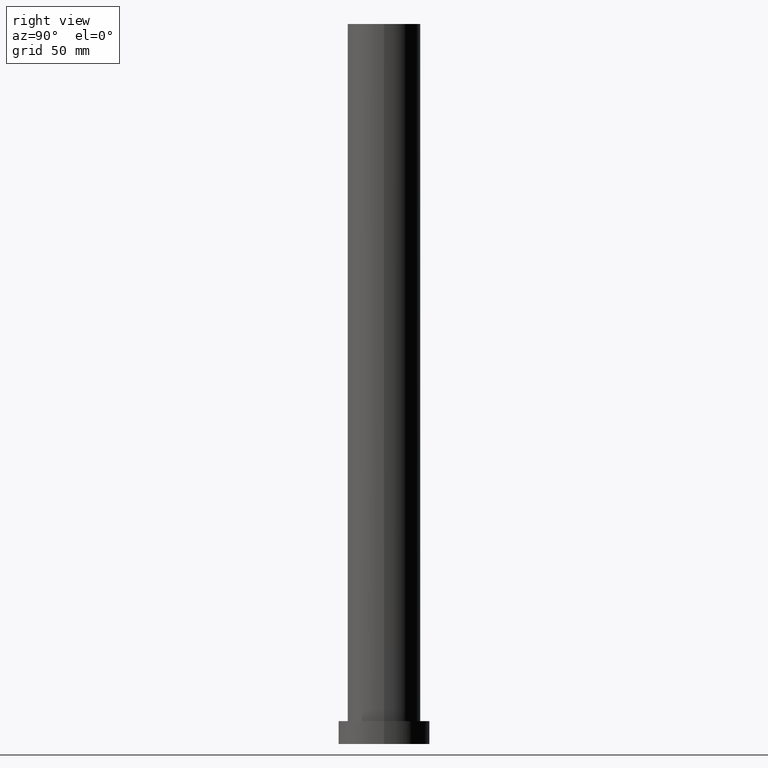
[diagram: clean part render]
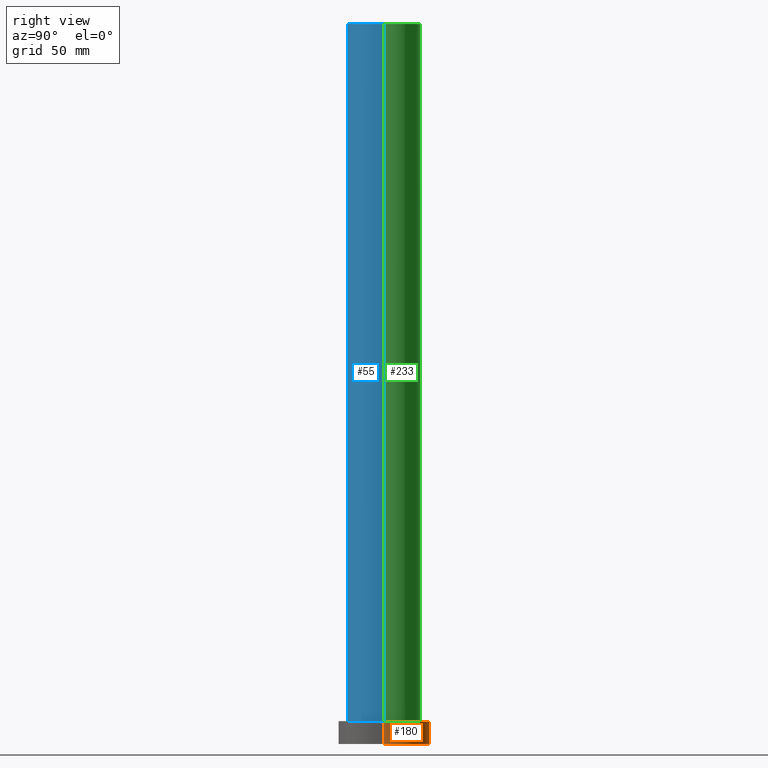
[diagram: same view with three faces highlighted in distinct colors, each labeled with its STEP entity id]
A machine part, right view with three faces highlighted in distinct colors.
Their STEP definitions:

[orange] entity #180 — the highlighted cylindrical surface (partial cylindrical patch) has radius 20 mm, axis along (-0, -0, -1).
#2 = VERTEX_POINT ( 'NONE', #158 ) ;
#4 = DIRECTION ( 'NONE',  ( -0.000000000000000000, -0.000000000000000000, -1.000000000000000000 ) ) ;
#8 = CARTESIAN_POINT ( 'NONE',  ( 0.000000000000000000, 0.000000000000000000, 10.00000000000000000 ) ) ;
#9 = ORIENTED_EDGE ( 'NONE', *, *, #79, .T. ) ;
#15 = CARTESIAN_POINT ( 'NONE',  ( 0.000000000000000000, 0.000000000000000000, 0.000000000000000000 ) ) ;
#23 = VERTEX_POINT ( 'NONE', #127 ) ;
#35 = DIRECTION ( 'NONE',  ( -1.000000000000000000, 0.000000000000000000, 0.000000000000000000 ) ) ;
#38 = EDGE_CURVE ( 'NONE', #247, #2, #236, .T. ) ;
#52 = ORIENTED_EDGE ( 'NONE', *, *, #38, .T. ) ;
#59 = AXIS2_PLACEMENT_3D ( 'NONE', #8, #215, #35 ) ;
#63 = VECTOR ( 'NONE', #4, 1000.000000000000000 ) ;
#69 = FACE_OUTER_BOUND ( 'NONE', #165, .T. ) ;
#72 = CYLINDRICAL_SURFACE ( 'NONE', #59, 20.00000000000000000 ) ;
#74 = CARTESIAN_POINT ( 'NONE',  ( 20.00000000000000000, 2.449293598294706513E-15, 10.00000000000000000 ) ) ;
#75 = VECTOR ( 'NONE', #216, 1000.000000000000000 ) ;
#79 = EDGE_CURVE ( 'NONE', #2, #23, #95, .T. ) ;
#90 = DIRECTION ( 'NONE',  ( 0.000000000000000000, 0.000000000000000000, 1.000000000000000000 ) ) ;
#94 = DIRECTION ( 'NONE',  ( 0.000000000000000000, 0.000000000000000000, 1.000000000000000000 ) ) ;
#95 = CIRCLE ( 'NONE', #234, 20.00000000000000000 ) ;
#102 = AXIS2_PLACEMENT_3D ( 'NONE', #227, #90, #113 ) ;
#113 = DIRECTION ( 'NONE',  ( 1.000000000000000000, 0.000000000000000000, 0.000000000000000000 ) ) ;
#127 = CARTESIAN_POINT ( 'NONE',  ( -20.00000000000000000, 0.000000000000000000, 0.000000000000000000 ) ) ;
#131 = DIRECTION ( 'NONE',  ( 1.000000000000000000, 0.000000000000000000, 0.000000000000000000 ) ) ;
#153 = LINE ( 'NONE', #252, #75 ) ;
#158 = CARTESIAN_POINT ( 'NONE',  ( 20.00000000000000000, 2.449293598294706513E-15, 0.000000000000000000 ) ) ;
#162 = CARTESIAN_POINT ( 'NONE',  ( 20.00000000000000000, 2.449293598294706513E-15, 10.00000000000000000 ) ) ;
#165 = EDGE_LOOP ( 'NONE', ( #245, #52, #9, #213 ) ) ;
#176 = VERTEX_POINT ( 'NONE', #253 ) ;
#180 = ADVANCED_FACE ( 'NONE', ( #69 ), #72, .T. ) ;
#206 = EDGE_CURVE ( 'NONE', #247, #176, #210, .T. ) ;
#210 = CIRCLE ( 'NONE', #102, 20.00000000000000000 ) ;
#213 = ORIENTED_EDGE ( 'NONE', *, *, #223, .F. ) ;
#215 = DIRECTION ( 'NONE',  ( -0.000000000000000000, -0.000000000000000000, -1.000000000000000000 ) ) ;
#216 = DIRECTION ( 'NONE',  ( -0.000000000000000000, -0.000000000000000000, -1.000000000000000000 ) ) ;
#223 = EDGE_CURVE ( 'NONE', #176, #23, #153, .T. ) ;
#227 = CARTESIAN_POINT ( 'NONE',  ( 0.000000000000000000, 0.000000000000000000, 10.00000000000000000 ) ) ;
#234 = AXIS2_PLACEMENT_3D ( 'NONE', #15, #94, #131 ) ;
#236 = LINE ( 'NONE', #162, #63 ) ;
#245 = ORIENTED_EDGE ( 'NONE', *, *, #206, .F. ) ;
#247 = VERTEX_POINT ( 'NONE', #74 ) ;
#252 = CARTESIAN_POINT ( 'NONE',  ( -20.00000000000000000, 0.000000000000000000, 10.00000000000000000 ) ) ;
#253 = CARTESIAN_POINT ( 'NONE',  ( -20.00000000000000000, 0.000000000000000000, 10.00000000000000000 ) ) ;

[blue] entity #55 — the highlighted cylindrical surface (edge-blend (fillet) strip) has radius 16 mm, axis along (-0, -0, -1).
#12 = EDGE_LOOP ( 'NONE', ( #201, #251, #230, #47 ) ) ;
#22 = CARTESIAN_POINT ( 'NONE',  ( -16.00000000000000000, 0.000000000000000000, 315.0000000000000000 ) ) ;
#26 = CARTESIAN_POINT ( 'NONE',  ( -16.00000000000000000, 0.000000000000000000, 10.00000000000000000 ) ) ;
#36 = EDGE_CURVE ( 'NONE', #189, #134, #240, .T. ) ;
#47 = ORIENTED_EDGE ( 'NONE', *, *, #199, .T. ) ;
#53 = CARTESIAN_POINT ( 'NONE',  ( 16.00000000000000000, 1.959434878635765131E-15, 315.0000000000000000 ) ) ;
#55 = ADVANCED_FACE ( 'NONE', ( #185 ), #56, .T. ) ;
#56 = CYLINDRICAL_SURFACE ( 'NONE', #82, 16.00000000000000000 ) ;
#66 = DIRECTION ( 'NONE',  ( 1.000000000000000000, 0.000000000000000000, 0.000000000000000000 ) ) ;
#71 = CIRCLE ( 'NONE', #218, 16.00000000000000000 ) ;
#81 = DIRECTION ( 'NONE',  ( -1.000000000000000000, 0.000000000000000000, 0.000000000000000000 ) ) ;
#82 = AXIS2_PLACEMENT_3D ( 'NONE', #243, #220, #81 ) ;
#86 = VERTEX_POINT ( 'NONE', #202 ) ;
#89 = CARTESIAN_POINT ( 'NONE',  ( 16.00000000000000000, 1.959434878635765131E-15, 315.0000000000000000 ) ) ;
#93 = VERTEX_POINT ( 'NONE', #26 ) ;
#106 = EDGE_CURVE ( 'NONE', #189, #93, #115, .T. ) ;
#108 = DIRECTION ( 'NONE',  ( -0.000000000000000000, -0.000000000000000000, -1.000000000000000000 ) ) ;
#115 = LINE ( 'NONE', #22, #229 ) ;
#122 = VECTOR ( 'NONE', #214, 1000.000000000000000 ) ;
#134 = VERTEX_POINT ( 'NONE', #53 ) ;
#140 = DIRECTION ( 'NONE',  ( 1.000000000000000000, 0.000000000000000000, 0.000000000000000000 ) ) ;
#152 = CARTESIAN_POINT ( 'NONE',  ( 0.000000000000000000, 0.000000000000000000, 10.00000000000000000 ) ) ;
#161 = AXIS2_PLACEMENT_3D ( 'NONE', #163, #182, #140 ) ;
#163 = CARTESIAN_POINT ( 'NONE',  ( 0.000000000000000000, 0.000000000000000000, 315.0000000000000000 ) ) ;
#167 = DIRECTION ( 'NONE',  ( 0.000000000000000000, 0.000000000000000000, 1.000000000000000000 ) ) ;
#169 = EDGE_CURVE ( 'NONE', #134, #86, #212, .T. ) ;
#182 = DIRECTION ( 'NONE',  ( 0.000000000000000000, 0.000000000000000000, 1.000000000000000000 ) ) ;
#185 = FACE_OUTER_BOUND ( 'NONE', #12, .T. ) ;
#189 = VERTEX_POINT ( 'NONE', #244 ) ;
#199 = EDGE_CURVE ( 'NONE', #93, #86, #71, .T. ) ;
#201 = ORIENTED_EDGE ( 'NONE', *, *, #169, .F. ) ;
#202 = CARTESIAN_POINT ( 'NONE',  ( 16.00000000000000000, 1.959434878635765131E-15, 10.00000000000000000 ) ) ;
#212 = LINE ( 'NONE', #89, #122 ) ;
#214 = DIRECTION ( 'NONE',  ( -0.000000000000000000, -0.000000000000000000, -1.000000000000000000 ) ) ;
#218 = AXIS2_PLACEMENT_3D ( 'NONE', #152, #167, #66 ) ;
#220 = DIRECTION ( 'NONE',  ( -0.000000000000000000, -0.000000000000000000, -1.000000000000000000 ) ) ;
#229 = VECTOR ( 'NONE', #108, 1000.000000000000000 ) ;
#230 = ORIENTED_EDGE ( 'NONE', *, *, #106, .T. ) ;
#240 = CIRCLE ( 'NONE', #161, 16.00000000000000000 ) ;
#243 = CARTESIAN_POINT ( 'NONE',  ( 0.000000000000000000, 0.000000000000000000, 315.0000000000000000 ) ) ;
#244 = CARTESIAN_POINT ( 'NONE',  ( -16.00000000000000000, 0.000000000000000000, 315.0000000000000000 ) ) ;
#251 = ORIENTED_EDGE ( 'NONE', *, *, #36, .F. ) ;

[green] entity #233 — the highlighted cylindrical surface (edge-blend (fillet) strip) has radius 16 mm, axis along (-0, -0, -1).
#11 = CARTESIAN_POINT ( 'NONE',  ( 0.000000000000000000, 0.000000000000000000, 10.00000000000000000 ) ) ;
#22 = CARTESIAN_POINT ( 'NONE',  ( -16.00000000000000000, 0.000000000000000000, 315.0000000000000000 ) ) ;
#26 = CARTESIAN_POINT ( 'NONE',  ( -16.00000000000000000, 0.000000000000000000, 10.00000000000000000 ) ) ;
#48 = CIRCLE ( 'NONE', #221, 16.00000000000000000 ) ;
#53 = CARTESIAN_POINT ( 'NONE',  ( 16.00000000000000000, 1.959434878635765131E-15, 315.0000000000000000 ) ) ;
#54 = CYLINDRICAL_SURFACE ( 'NONE', #112, 16.00000000000000000 ) ;
#67 = ORIENTED_EDGE ( 'NONE', *, *, #160, .T. ) ;
#73 = ORIENTED_EDGE ( 'NONE', *, *, #124, .F. ) ;
#83 = DIRECTION ( 'NONE',  ( 0.000000000000000000, 0.000000000000000000, 1.000000000000000000 ) ) ;
#86 = VERTEX_POINT ( 'NONE', #202 ) ;
#89 = CARTESIAN_POINT ( 'NONE',  ( 16.00000000000000000, 1.959434878635765131E-15, 315.0000000000000000 ) ) ;
#93 = VERTEX_POINT ( 'NONE', #26 ) ;
#96 = EDGE_LOOP ( 'NONE', ( #73, #191, #67, #168 ) ) ;
#97 = AXIS2_PLACEMENT_3D ( 'NONE', #11, #188, #172 ) ;
#106 = EDGE_CURVE ( 'NONE', #189, #93, #115, .T. ) ;
#108 = DIRECTION ( 'NONE',  ( -0.000000000000000000, -0.000000000000000000, -1.000000000000000000 ) ) ;
#112 = AXIS2_PLACEMENT_3D ( 'NONE', #194, #254, #232 ) ;
#115 = LINE ( 'NONE', #22, #229 ) ;
#122 = VECTOR ( 'NONE', #214, 1000.000000000000000 ) ;
#124 = EDGE_CURVE ( 'NONE', #134, #189, #48, .T. ) ;
#134 = VERTEX_POINT ( 'NONE', #53 ) ;
#155 = FACE_OUTER_BOUND ( 'NONE', #96, .T. ) ;
#160 = EDGE_CURVE ( 'NONE', #86, #93, #196, .T. ) ;
#166 = DIRECTION ( 'NONE',  ( 1.000000000000000000, 0.000000000000000000, 0.000000000000000000 ) ) ;
#168 = ORIENTED_EDGE ( 'NONE', *, *, #106, .F. ) ;
#169 = EDGE_CURVE ( 'NONE', #134, #86, #212, .T. ) ;
#172 = DIRECTION ( 'NONE',  ( 1.000000000000000000, 0.000000000000000000, 0.000000000000000000 ) ) ;
#187 = CARTESIAN_POINT ( 'NONE',  ( 0.000000000000000000, 0.000000000000000000, 315.0000000000000000 ) ) ;
#188 = DIRECTION ( 'NONE',  ( 0.000000000000000000, 0.000000000000000000, 1.000000000000000000 ) ) ;
#189 = VERTEX_POINT ( 'NONE', #244 ) ;
#191 = ORIENTED_EDGE ( 'NONE', *, *, #169, .T. ) ;
#194 = CARTESIAN_POINT ( 'NONE',  ( 0.000000000000000000, 0.000000000000000000, 315.0000000000000000 ) ) ;
#196 = CIRCLE ( 'NONE', #97, 16.00000000000000000 ) ;
#202 = CARTESIAN_POINT ( 'NONE',  ( 16.00000000000000000, 1.959434878635765131E-15, 10.00000000000000000 ) ) ;
#212 = LINE ( 'NONE', #89, #122 ) ;
#214 = DIRECTION ( 'NONE',  ( -0.000000000000000000, -0.000000000000000000, -1.000000000000000000 ) ) ;
#221 = AXIS2_PLACEMENT_3D ( 'NONE', #187, #83, #166 ) ;
#229 = VECTOR ( 'NONE', #108, 1000.000000000000000 ) ;
#232 = DIRECTION ( 'NONE',  ( -1.000000000000000000, 0.000000000000000000, 0.000000000000000000 ) ) ;
#233 = ADVANCED_FACE ( 'NONE', ( #155 ), #54, .T. ) ;
#244 = CARTESIAN_POINT ( 'NONE',  ( -16.00000000000000000, 0.000000000000000000, 315.0000000000000000 ) ) ;
#254 = DIRECTION ( 'NONE',  ( -0.000000000000000000, -0.000000000000000000, -1.000000000000000000 ) ) ;